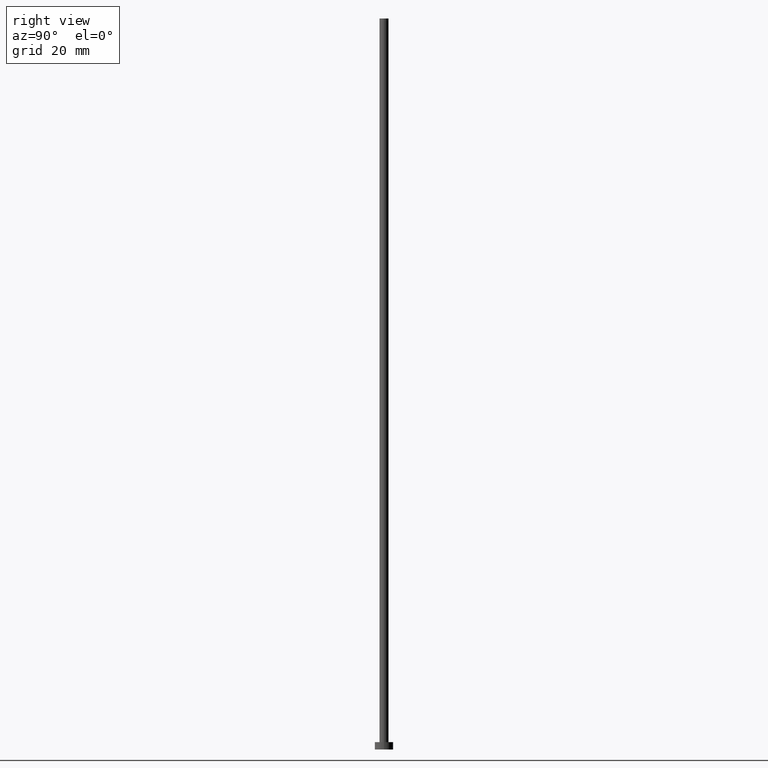
[diagram: clean part render]
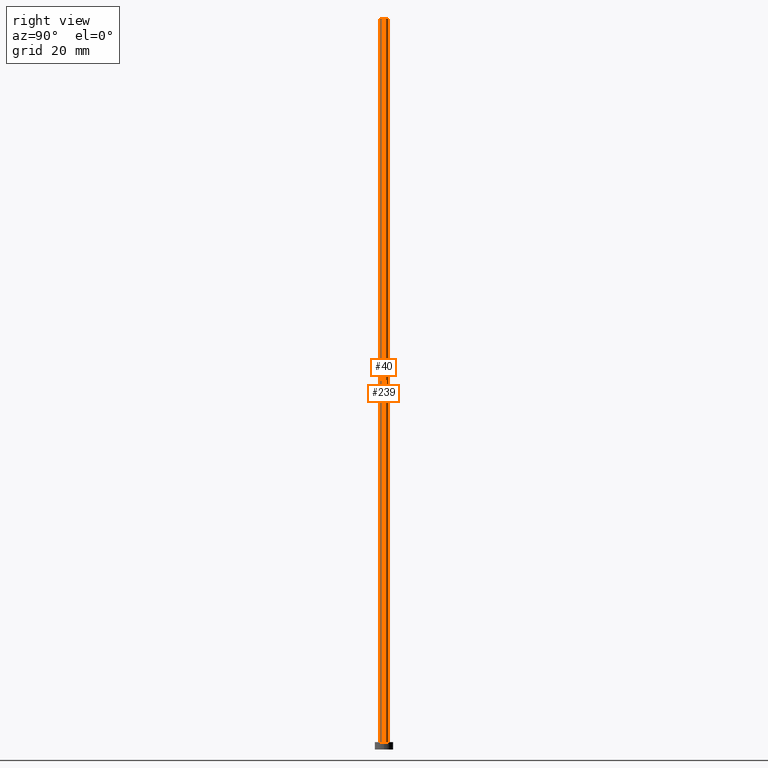
[diagram: same view with one multi-face feature highlighted, each face labeled with its STEP entity id]
A machine part, right view. The highlighted faces form ONE feature: a constant-radius fillet chain: 2 tangent blend faces with common blend radius 1.25 mm. The faces share edges in the B-rep.
Their STEP definitions:
[1] entity #40 (Cylinder):
#6 = DIRECTION ( 'NONE',  ( -1.000000000000000000, 0.000000000000000000, 0.000000000000000000 ) ) ;
#21 = VECTOR ( 'NONE', #152, 1000.000000000000000 ) ;
#24 = AXIS2_PLACEMENT_3D ( 'NONE', #187, #214, #6 ) ;
#27 = DIRECTION ( 'NONE',  ( -0.000000000000000000, -0.000000000000000000, -1.000000000000000000 ) ) ;
#40 = ADVANCED_FACE ( 'NONE', ( #216 ), #108, .T. ) ;
#43 = VERTEX_POINT ( 'NONE', #88 ) ;
#51 = LINE ( 'NONE', #115, #61 ) ;
#54 = CARTESIAN_POINT ( 'NONE',  ( 1.250000000000000000, 1.530808498934191571E-16, 200.0000000000000000 ) ) ;
#61 = VECTOR ( 'NONE', #27, 1000.000000000000000 ) ;
#65 = ORIENTED_EDGE ( 'NONE', *, *, #193, .F. ) ;
#67 = DIRECTION ( 'NONE',  ( 0.000000000000000000, 0.000000000000000000, 1.000000000000000000 ) ) ;
#70 = EDGE_CURVE ( 'NONE', #196, #225, #229, .T. ) ;
#72 = DIRECTION ( 'NONE',  ( 0.000000000000000000, 0.000000000000000000, 1.000000000000000000 ) ) ;
#86 = EDGE_LOOP ( 'NONE', ( #65, #117, #185, #247 ) ) ;
#88 = CARTESIAN_POINT ( 'NONE',  ( 1.250000000000000000, 1.530808498934191571E-16, 2.000000000000000000 ) ) ;
#108 = CYLINDRICAL_SURFACE ( 'NONE', #24, 1.250000000000000000 ) ;
#115 = CARTESIAN_POINT ( 'NONE',  ( 1.250000000000000000, 1.530808498934191571E-16, 200.0000000000000000 ) ) ;
#117 = ORIENTED_EDGE ( 'NONE', *, *, #70, .F. ) ;
#118 = CARTESIAN_POINT ( 'NONE',  ( -1.250000000000000000, 0.000000000000000000, 2.000000000000000000 ) ) ;
#133 = DIRECTION ( 'NONE',  ( 1.000000000000000000, 0.000000000000000000, 0.000000000000000000 ) ) ;
#135 = LINE ( 'NONE', #248, #21 ) ;
#152 = DIRECTION ( 'NONE',  ( -0.000000000000000000, -0.000000000000000000, -1.000000000000000000 ) ) ;
#153 = CARTESIAN_POINT ( 'NONE',  ( 0.000000000000000000, 0.000000000000000000, 2.000000000000000000 ) ) ;
#156 = AXIS2_PLACEMENT_3D ( 'NONE', #153, #72, #133 ) ;
#162 = EDGE_CURVE ( 'NONE', #249, #43, #236, .T. ) ;
#185 = ORIENTED_EDGE ( 'NONE', *, *, #205, .T. ) ;
#187 = CARTESIAN_POINT ( 'NONE',  ( 0.000000000000000000, 0.000000000000000000, 200.0000000000000000 ) ) ;
#193 = EDGE_CURVE ( 'NONE', #225, #43, #51, .T. ) ;
#196 = VERTEX_POINT ( 'NONE', #217 ) ;
#197 = AXIS2_PLACEMENT_3D ( 'NONE', #246, #67, #253 ) ;
#205 = EDGE_CURVE ( 'NONE', #196, #249, #135, .T. ) ;
#214 = DIRECTION ( 'NONE',  ( -0.000000000000000000, -0.000000000000000000, -1.000000000000000000 ) ) ;
#216 = FACE_OUTER_BOUND ( 'NONE', #86, .T. ) ;
#217 = CARTESIAN_POINT ( 'NONE',  ( -1.250000000000000000, 0.000000000000000000, 200.0000000000000000 ) ) ;
#225 = VERTEX_POINT ( 'NONE', #54 ) ;
#229 = CIRCLE ( 'NONE', #197, 1.250000000000000000 ) ;
#236 = CIRCLE ( 'NONE', #156, 1.250000000000000000 ) ;
#246 = CARTESIAN_POINT ( 'NONE',  ( 0.000000000000000000, 0.000000000000000000, 200.0000000000000000 ) ) ;
#247 = ORIENTED_EDGE ( 'NONE', *, *, #162, .T. ) ;
#248 = CARTESIAN_POINT ( 'NONE',  ( -1.250000000000000000, 0.000000000000000000, 200.0000000000000000 ) ) ;
#249 = VERTEX_POINT ( 'NONE', #118 ) ;
#253 = DIRECTION ( 'NONE',  ( 1.000000000000000000, 0.000000000000000000, 0.000000000000000000 ) ) ;
[2] entity #239 (Cylinder):
#1 = AXIS2_PLACEMENT_3D ( 'NONE', #15, #52, #35 ) ;
#14 = CYLINDRICAL_SURFACE ( 'NONE', #1, 1.250000000000000000 ) ;
#15 = CARTESIAN_POINT ( 'NONE',  ( 0.000000000000000000, 0.000000000000000000, 200.0000000000000000 ) ) ;
#21 = VECTOR ( 'NONE', #152, 1000.000000000000000 ) ;
#27 = DIRECTION ( 'NONE',  ( -0.000000000000000000, -0.000000000000000000, -1.000000000000000000 ) ) ;
#29 = FACE_OUTER_BOUND ( 'NONE', #172, .T. ) ;
#35 = DIRECTION ( 'NONE',  ( -1.000000000000000000, 0.000000000000000000, 0.000000000000000000 ) ) ;
#36 = CIRCLE ( 'NONE', #183, 1.250000000000000000 ) ;
#43 = VERTEX_POINT ( 'NONE', #88 ) ;
#51 = LINE ( 'NONE', #115, #61 ) ;
#52 = DIRECTION ( 'NONE',  ( -0.000000000000000000, -0.000000000000000000, -1.000000000000000000 ) ) ;
#54 = CARTESIAN_POINT ( 'NONE',  ( 1.250000000000000000, 1.530808498934191571E-16, 200.0000000000000000 ) ) ;
#61 = VECTOR ( 'NONE', #27, 1000.000000000000000 ) ;
#77 = CARTESIAN_POINT ( 'NONE',  ( 0.000000000000000000, 0.000000000000000000, 2.000000000000000000 ) ) ;
#88 = CARTESIAN_POINT ( 'NONE',  ( 1.250000000000000000, 1.530808498934191571E-16, 2.000000000000000000 ) ) ;
#96 = CARTESIAN_POINT ( 'NONE',  ( 0.000000000000000000, 0.000000000000000000, 200.0000000000000000 ) ) ;
#106 = ORIENTED_EDGE ( 'NONE', *, *, #205, .F. ) ;
#113 = DIRECTION ( 'NONE',  ( 0.000000000000000000, 0.000000000000000000, 1.000000000000000000 ) ) ;
#115 = CARTESIAN_POINT ( 'NONE',  ( 1.250000000000000000, 1.530808498934191571E-16, 200.0000000000000000 ) ) ;
#118 = CARTESIAN_POINT ( 'NONE',  ( -1.250000000000000000, 0.000000000000000000, 2.000000000000000000 ) ) ;
#135 = LINE ( 'NONE', #248, #21 ) ;
#151 = ORIENTED_EDGE ( 'NONE', *, *, #192, .F. ) ;
#152 = DIRECTION ( 'NONE',  ( -0.000000000000000000, -0.000000000000000000, -1.000000000000000000 ) ) ;
#154 = DIRECTION ( 'NONE',  ( 0.000000000000000000, 0.000000000000000000, 1.000000000000000000 ) ) ;
#169 = ORIENTED_EDGE ( 'NONE', *, *, #251, .T. ) ;
#172 = EDGE_LOOP ( 'NONE', ( #151, #245, #169, #106 ) ) ;
#183 = AXIS2_PLACEMENT_3D ( 'NONE', #77, #113, #195 ) ;
#192 = EDGE_CURVE ( 'NONE', #225, #196, #231, .T. ) ;
#193 = EDGE_CURVE ( 'NONE', #225, #43, #51, .T. ) ;
#195 = DIRECTION ( 'NONE',  ( 1.000000000000000000, 0.000000000000000000, 0.000000000000000000 ) ) ;
#196 = VERTEX_POINT ( 'NONE', #217 ) ;
#205 = EDGE_CURVE ( 'NONE', #196, #249, #135, .T. ) ;
#217 = CARTESIAN_POINT ( 'NONE',  ( -1.250000000000000000, 0.000000000000000000, 200.0000000000000000 ) ) ;
#222 = AXIS2_PLACEMENT_3D ( 'NONE', #96, #154, #235 ) ;
#225 = VERTEX_POINT ( 'NONE', #54 ) ;
#231 = CIRCLE ( 'NONE', #222, 1.250000000000000000 ) ;
#235 = DIRECTION ( 'NONE',  ( 1.000000000000000000, 0.000000000000000000, 0.000000000000000000 ) ) ;
#239 = ADVANCED_FACE ( 'NONE', ( #29 ), #14, .T. ) ;
#245 = ORIENTED_EDGE ( 'NONE', *, *, #193, .T. ) ;
#248 = CARTESIAN_POINT ( 'NONE',  ( -1.250000000000000000, 0.000000000000000000, 200.0000000000000000 ) ) ;
#249 = VERTEX_POINT ( 'NONE', #118 ) ;
#251 = EDGE_CURVE ( 'NONE', #43, #249, #36, .T. ) ;